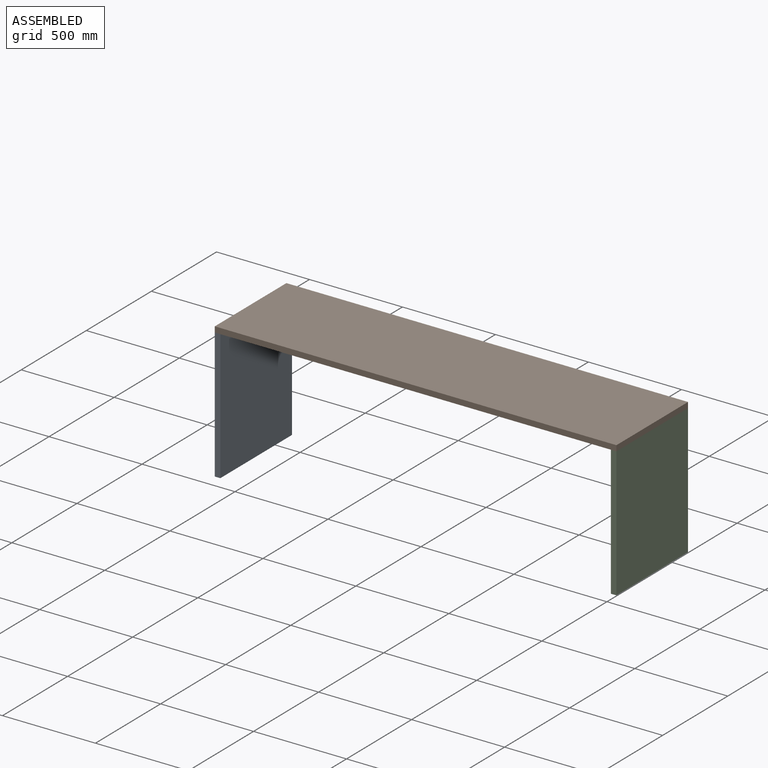
[diagram: assembled view]
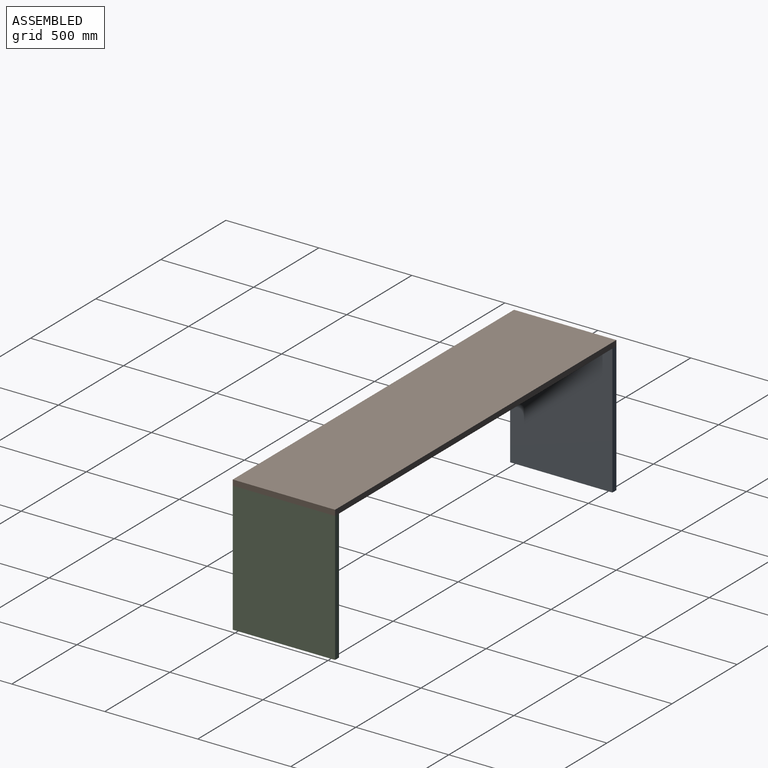
[diagram: assembled view, second angle]
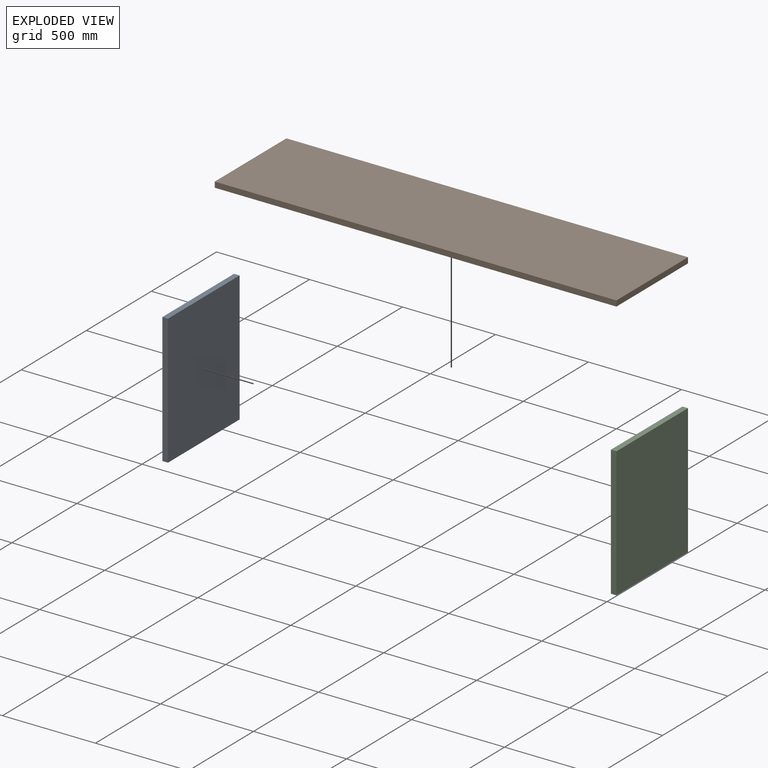
[diagram: exploded view]
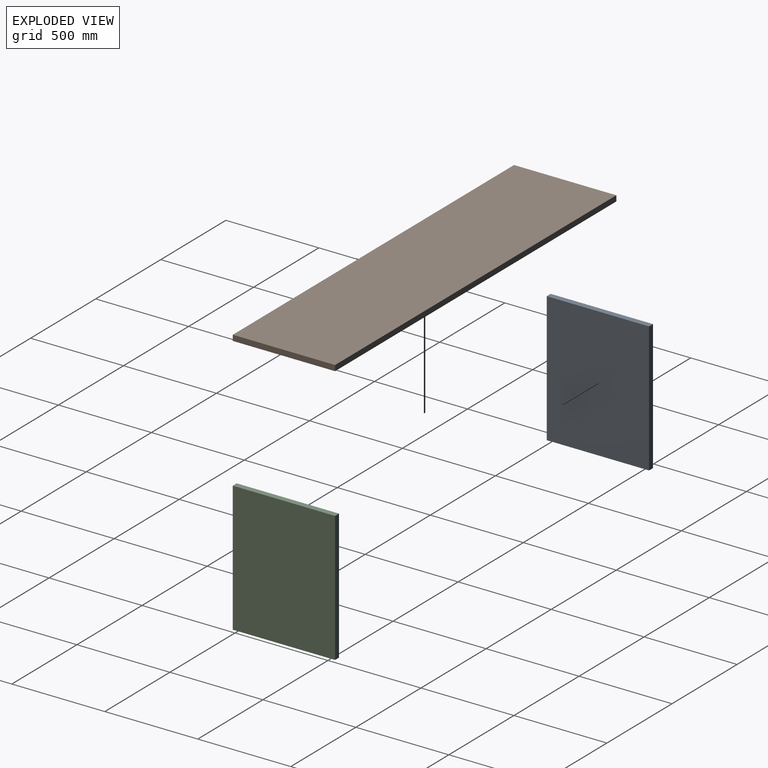
[diagram: exploded view, second angle]
ASSEMBLY  parts=3 mates=6
PART A: 6 faces, bbox 700x550x30 mm
  f0: plane 550x30mm, normal (-1,0,0), area 16500mm2, adj f1,f3,f4,f5
  f1: plane 700x550mm, normal (0,0,-1), area 385000mm2, adj f0,f2,f4,f5
  f2: plane 550x30mm, normal (1,0,0), area 16500mm2, adj f1,f3,f4,f5
  f3: plane 700x550mm, normal (0,0,1), area 385000mm2, adj f0,f2,f4,f5
  f4: plane 700x30mm, normal (0,-1,0), area 21000mm2, adj f0,f1,f2,f3
  f5: plane 700x30mm, normal (0,1,0), area 21000mm2, adj f0,f1,f2,f3
PART B: 6 faces, bbox 2160x550x30 mm
  f0: plane 2160x550mm, normal (0,0,1), area 1188000mm2, adj f1,f3,f4,f5
  f1: plane 550x30mm, normal (-1,0,0), area 16500mm2, adj f0,f2,f4,f5
  f2: plane 2160x550mm, normal (0,0,-1), area 1188000mm2, adj f1,f3,f4,f5
  f3: plane 550x30mm, normal (1,0,0), area 16500mm2, adj f0,f2,f4,f5
  f4: plane 2160x30mm, normal (0,-1,0), area 64800mm2, adj f0,f1,f2,f3
  f5: plane 2160x30mm, normal (0,1,0), area 64800mm2, adj f0,f1,f2,f3
PART C: same geometry as A
PLACE A rot(axis=(0,-1,0),90deg) t=(-1090.12,566.22,213.45)mm
PLACE B t=(-95.24,566.22,600.86)mm
PLACE C rot(axis=(0,1,0),90deg) t=(1009.88,566.22,288.26)mm
MATE planar C.f4 <-> B.f4  axis (0,-1,0) through (1024.88,16.22,250.86)mm
MATE planar C.f0 <-> B.f2  axis (0,0,1) through (1024.88,291.22,600.86)mm
MATE planar A.f4 <-> B.f4  axis (0,-1,0) through (-1105.12,16.22,250.86)mm
MATE planar A.f2 <-> B.f2  axis (0,0,1) through (-1105.12,291.22,600.86)mm
MATE planar A.f3 <-> B.f1  axis (-1,0,0) through (-1120.12,291.22,250.86)mm
MATE planar C.f3 <-> B.f3  axis (1,0,0) through (1039.88,291.22,250.86)mm
